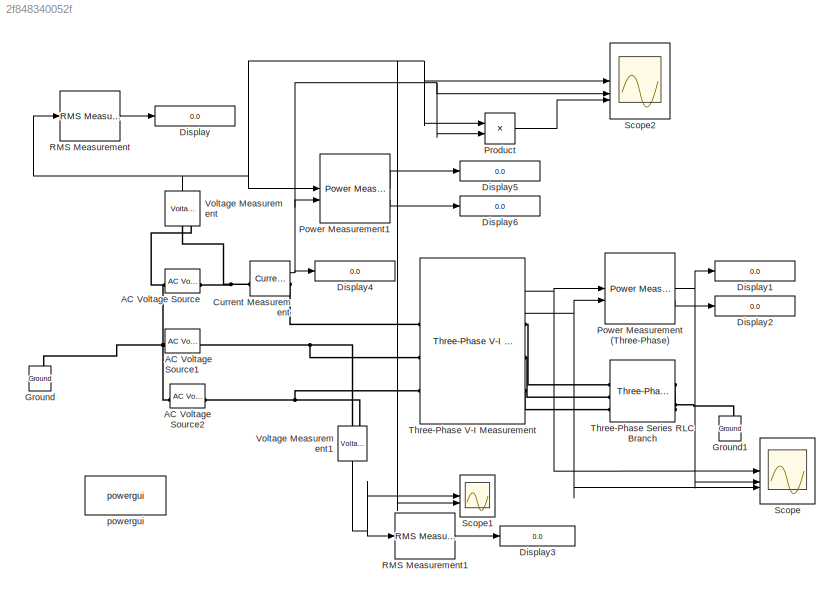
MODEL slx_2f848340052f
KIND model
CONFIG AbsTol = auto
CONFIG EnableMultiTasking = off
CONFIG FixedStep = auto
CONFIG MaxStep = auto
CONFIG MinStep = auto
CONFIG RelTol = 1e-3
CONFIG SampleTimeConstraint = Unconstrained
CONFIG SolverName = VariableStepAuto
CONFIG StartTime = 0.0
CONFIG StopTime = 0.03
BLOCK [Reference] AC Voltage Source  REF=spsACVoltageSourceLib/AC Voltage Source
  LibrarySourceBlock = sps_lib/Sources/AC Voltage Source
  NameLocation = right
  SourceBlock = spsACVoltageSourceLib/AC Voltage Source
  SourceType = AC Voltage Source
BLOCK [Reference] AC Voltage Source1  REF=spsACVoltageSourceLib/AC Voltage Source
  LibrarySourceBlock = sps_lib/Sources/AC Voltage Source
  NameLocation = right
  SourceBlock = spsACVoltageSourceLib/AC Voltage Source
  SourceType = AC Voltage Source
BLOCK [Reference] AC Voltage Source2  REF=spsACVoltageSourceLib/AC Voltage Source
  LibrarySourceBlock = sps_lib/Sources/AC Voltage Source
  NameLocation = right
  SourceBlock = spsACVoltageSourceLib/AC Voltage Source
  SourceType = AC Voltage Source
BLOCK [Reference] Current Measurement  REF=spsCurrentMeasurementLib/Current Measurement
  LibrarySourceBlock = sps_lib/Sensors and Measurements/Current Measurement
  SourceBlock = spsCurrentMeasurementLib/Current Measurement
  SourceType = Current Measurement
  UserDataPersistent = on
BLOCK [Display] Display
  Decimation = 1
BLOCK [Display] Display1
  Decimation = 1
BLOCK [Display] Display2
  Decimation = 1
BLOCK [Display] Display3
  Decimation = 1
BLOCK [Display] Display4
  Decimation = 1
BLOCK [Display] Display5
  Decimation = 1
BLOCK [Display] Display6
  Decimation = 1
BLOCK [Reference] Ground  REF=spsGroundLib/Ground
  LibrarySourceBlock = sps_lib/Utilities/Ground
  NameLocation = right
  SourceBlock = spsGroundLib/Ground
  SourceType = Ground
BLOCK [Reference] Ground1  REF=spsGroundLib/Ground
  LibrarySourceBlock = sps_lib/Utilities/Ground
  NameLocation = right
  SourceBlock = spsGroundLib/Ground
  SourceType = Ground
BLOCK [Reference] Power Measurement (Three-Phase)  REF=eePowerMeasurement/Power Measurement
(Three-Phase)
  LibrarySourceBlock = ee_sl_lib/Measurements/Power Measurement\n(Three-Phase)
  SourceBlock = eePowerMeasurement/Power Measurement\n(Three-Phase)
  SourceType = Power Measurement (Three-Phase)
BLOCK [Reference] Power Measurement1  REF=eePowerMeasurement/Power
Measurement
  LibrarySourceBlock = ee_sl_lib/Measurements/Power\nMeasurement
  SourceBlock = eePowerMeasurement/Power\nMeasurement
  SourceType = Power Measurement
BLOCK [Product] Product
BLOCK [Reference] RMS Measurement  REF=eeRmsMeasurement/RMS
Measurement
  LibrarySourceBlock = ee_sl_lib/Measurements/RMS\nMeasurement
  SourceBlock = eeRmsMeasurement/RMS\nMeasurement
  SourceType = RMS Measurement
BLOCK [Reference] RMS Measurement1  REF=eeRmsMeasurement/RMS
Measurement
  LibrarySourceBlock = ee_sl_lib/Measurements/RMS\nMeasurement
  SourceBlock = eeRmsMeasurement/RMS\nMeasurement
  SourceType = RMS Measurement
BLOCK [Scope] Scope
  Floating = off
  NumInputPorts = 3
  ScopeSpecificationString = Simulink.scopes.TimeScopeBlockCfg('CurrentConfiguration', extmgr.ConfigurationSet(extmgr.Configuration('Core','General UI',true),extmgr.Configuration('Core','Source UI',true),extmgr.Configuration('Sources','WiredSimulink',true),extmgr.Configuration('Visuals','Time Domain',true,'SerializedDisplays',{struct('MinYLimReal','-274.92889','MaxYLimReal','274.97867','YLabelReal','','MinYLimMag',' 0.00000',...<+3272ch>
BLOCK [Scope] Scope1
  Floating = off
  NumInputPorts = 2
  ScopeSpecificationString = Simulink.scopes.TimeScopeBlockCfg('CurrentConfiguration', extmgr.ConfigurationSet(extmgr.Configuration('Core','General UI',true),extmgr.Configuration('Core','Source UI',true),extmgr.Configuration('Sources','WiredSimulink',true,'DataLoggingVariableName','ScopeData1'),extmgr.Configuration('Visuals','Time Domain',true,'SerializedDisplays',{struct('MinYLimReal','-476.31397','MaxYLimReal','476.31397','...<+1504ch>
BLOCK [Scope] Scope2
  Floating = off
  NumInputPorts = 3
  ScopeSpecificationString = Simulink.scopes.TimeScopeBlockCfg('CurrentConfiguration', extmgr.ConfigurationSet(extmgr.Configuration('Core','General UI',true),extmgr.Configuration('Core','Source UI',true),extmgr.Configuration('Sources','WiredSimulink',true,'DataLoggingVariableName','ScopeData2'),extmgr.Configuration('Visuals','Time Domain',true,'SerializedDisplays',{struct('MinYLimReal','-274.9245','MaxYLimReal','274.93909','Y...<+1543ch>
BLOCK [Reference] Three-Phase Series RLC Branch  REF=spsThreePhaseSeriesRLCBranchLib/Three-Phase
Series RLC Branch
  AttributesFormatString = \n
  LibrarySourceBlock = sps_lib/Passives/Three-Phase\nSeries RLC Branch
  SourceBlock = spsThreePhaseSeriesRLCBranchLib/Three-Phase\nSeries RLC Branch
  SourceType = Three-Phase Series RLC Branch
BLOCK [Reference] Three-Phase V-I Measurement  REF=spsThreePhaseVIMeasurementLib/Three-Phase
V-I Measurement
  LibrarySourceBlock = sps_lib/Sensors and Measurements/Three-Phase\nV-I Measurement
  SourceBlock = spsThreePhaseVIMeasurementLib/Three-Phase\nV-I Measurement
  SourceType = Three-Phase VI Measurement
BLOCK [Reference] Voltage Measurement  REF=spsVoltageMeasurementLib/Voltage Measurement
  LibrarySourceBlock = sps_lib/Sensors and Measurements/Voltage Measurement
  NameLocation = right
  SourceBlock = spsVoltageMeasurementLib/Voltage Measurement
  SourceType = Voltage Measurement
  UserDataPersistent = on
BLOCK [Reference] Voltage Measurement1  REF=spsVoltageMeasurementLib/Voltage Measurement
  LibrarySourceBlock = sps_lib/Sensors and Measurements/Voltage Measurement
  NameLocation = left
  SourceBlock = spsVoltageMeasurementLib/Voltage Measurement
  SourceType = Voltage Measurement
  UserDataPersistent = on
BLOCK [Reference] powergui  REF=sps_lib/powergui
  LibrarySourceBlock = sps_lib/powergui
  Priority = 1
  SourceBlock = sps_lib/powergui
  SourceType = PSB option menu block
NET Current Measurement:1 -> Display4:1, Power Measurement1:2, Product:2, Scope2:2
NET Power Measurement (Three-Phase):1 -> Display1:1, Scope:2
LINE Power Measurement (Three-Phase):2 -> Display2:1
LINE Power Measurement1:1 -> Display5:1
LINE Power Measurement1:2 -> Display6:1
LINE Product:1 -> Scope2:3
LINE RMS Measurement1:1 -> Display3:1
LINE RMS Measurement:1 -> Display:1
NET Three-Phase V-I Measurement:1 -> Power Measurement (Three-Phase):1, Scope:1
NET Three-Phase V-I Measurement:2 -> Power Measurement (Three-Phase):2, Scope:3
NET Voltage Measurement1:1 -> RMS Measurement1:1, Scope1:1
NET Voltage Measurement:1 -> Power Measurement1:1, Product:1, RMS Measurement:1, Scope1:2, Scope2:1
PNET net1: AC Voltage Source1:LConn1 -- Three-Phase V-I Measurement:LConn2 -- Voltage Measurement1:LConn1
PNET net2: AC Voltage Source1:RConn1 -- AC Voltage Source2:RConn1 -- AC Voltage Source:RConn1 -- Ground:LConn1 -- Voltage Measurement:LConn2
PNET net3: AC Voltage Source2:LConn1 -- Three-Phase V-I Measurement:LConn3 -- Voltage Measurement1:LConn2
PNET net4: AC Voltage Source:LConn1 -- Current Measurement:LConn1 -- Voltage Measurement:LConn1
PLINE Current Measurement:RConn1 -- Three-Phase V-I Measurement:LConn1
PNET net5: Ground1:LConn1 -- Three-Phase Series RLC Branch:RConn1 -- Three-Phase Series RLC Branch:RConn2 -- Three-Phase Series RLC Branch:RConn3
PLINE Three-Phase Series RLC Branch:LConn1 -- Three-Phase V-I Measurement:RConn1
PLINE Three-Phase Series RLC Branch:LConn2 -- Three-Phase V-I Measurement:RConn2
PLINE Three-Phase Series RLC Branch:LConn3 -- Three-Phase V-I Measurement:RConn3
note: NET lines group one-source signal fan-out (src -> all destinations, sorted); 1:1 wires keep LINE; PNET lines group multi-terminal physical nets as a canonical sorted terminal list (undirected conserving connections); 2-terminal nets keep the pairwise PLINE form
